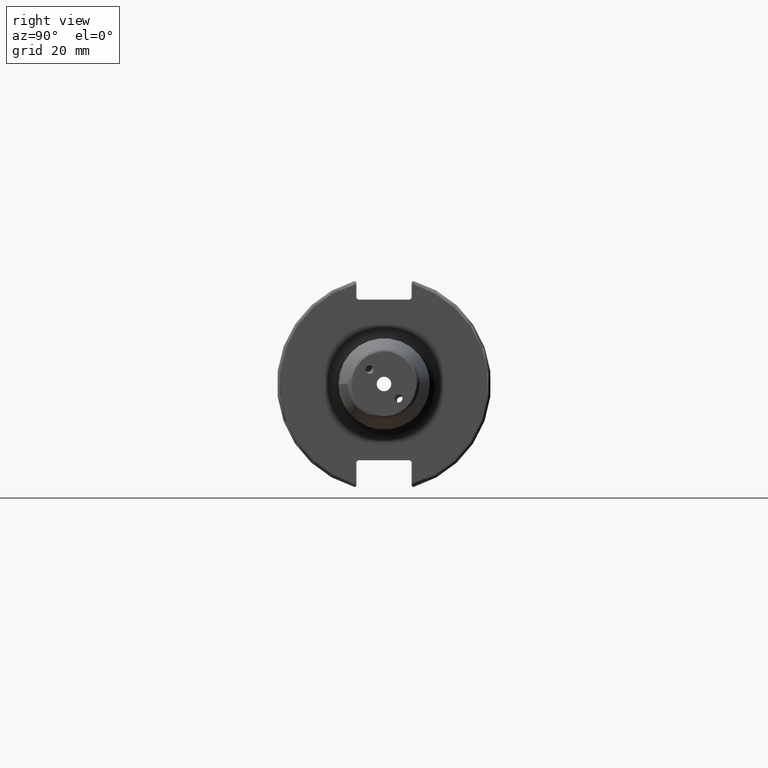
[diagram: clean part render]
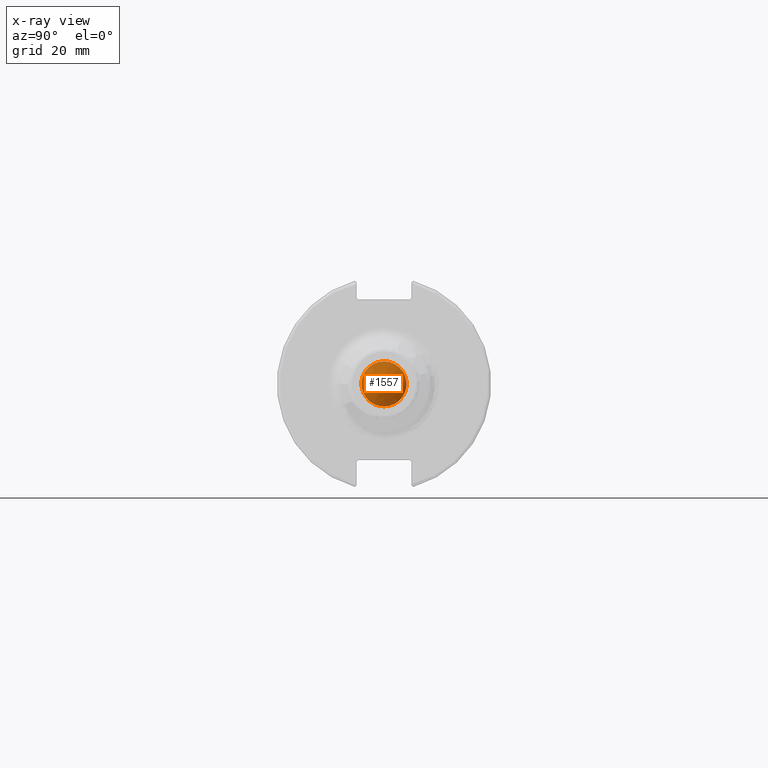
[diagram: x-ray — body ghosted, one internal face saturated and labeled with its STEP entity id]
A machine part, right view, then the same camera in x-ray: the body is ghosted and one INTERNAL B-rep face — a face not visible from any outside direction — is saturated and labeled: STEP entity #1557.
In plain terms, the highlighted conical surface has half-angle 59 deg.
Its self-contained STEP definition (entity closure, byte-faithful):
#188=FACE_OUTER_BOUND('',#283,.T.);
#283=EDGE_LOOP('',(#1105,#1106,#1107,#1108,#1109));
#394=LINE('',#2398,#492);
#492=VECTOR('',#1929,3.34645);
#588=CIRCLE('',#1688,2.15);
#589=CIRCLE('',#1689,2.15);
#590=CIRCLE('',#1691,6.6929);
#675=VERTEX_POINT('',#2390);
#676=VERTEX_POINT('',#2392);
#677=VERTEX_POINT('',#2396);
#842=EDGE_CURVE('',#676,#675,#588,.T.);
#843=EDGE_CURVE('',#675,#676,#589,.T.);
#844=EDGE_CURVE('',#677,#677,#590,.T.);
#845=EDGE_CURVE('',#677,#676,#394,.T.);
#1105=ORIENTED_EDGE('',*,*,#844,.T.);
#1106=ORIENTED_EDGE('',*,*,#845,.T.);
#1107=ORIENTED_EDGE('',*,*,#842,.T.);
#1108=ORIENTED_EDGE('',*,*,#843,.T.);
#1109=ORIENTED_EDGE('',*,*,#845,.F.);
#1534=CONICAL_SURFACE('',#1690,3.34645,1.02974425867665);
#1557=ADVANCED_FACE('',(#188),#1534,.F.);
#1688=AXIS2_PLACEMENT_3D('',#2393,#1921,#1922);
#1689=AXIS2_PLACEMENT_3D('',#2394,#1923,#1924);
#1690=AXIS2_PLACEMENT_3D('',#2395,#1925,#1926);
#1691=AXIS2_PLACEMENT_3D('',#2397,#1927,#1928);
#1921=DIRECTION('center_axis',(1.,0.,0.));
#1922=DIRECTION('ref_axis',(0.,0.,-1.));
#1923=DIRECTION('center_axis',(1.,0.,0.));
#1924=DIRECTION('ref_axis',(0.,0.,-1.));
#1925=DIRECTION('center_axis',(-1.,0.,0.));
#1926=DIRECTION('ref_axis',(0.,0.,1.));
#1927=DIRECTION('center_axis',(-1.,0.,0.));
#1928=DIRECTION('ref_axis',(0.,0.,1.));
#1929=DIRECTION('',(0.515038074910054,1.04972719113862E-16,0.857167300702112));
#2390=CARTESIAN_POINT('',(64.4796497061803,-2.63299061816681E-16,2.15));
#2392=CARTESIAN_POINT('',(64.4796497061803,-2.63299061816683E-16,-2.15000000000002));
#2393=CARTESIAN_POINT('Origin',(64.4796497061803,0.,0.));
#2394=CARTESIAN_POINT('Origin',(64.4796497061803,0.,0.));
#2395=CARTESIAN_POINT('Origin',(63.7607500185448,0.,0.));
#2396=CARTESIAN_POINT('',(61.75,-8.19643856201333E-16,-6.6929));
#2397=CARTESIAN_POINT('Origin',(61.75,0.,0.));
#2398=CARTESIAN_POINT('',(63.7607500185448,-4.09821928100666E-16,-3.34645));